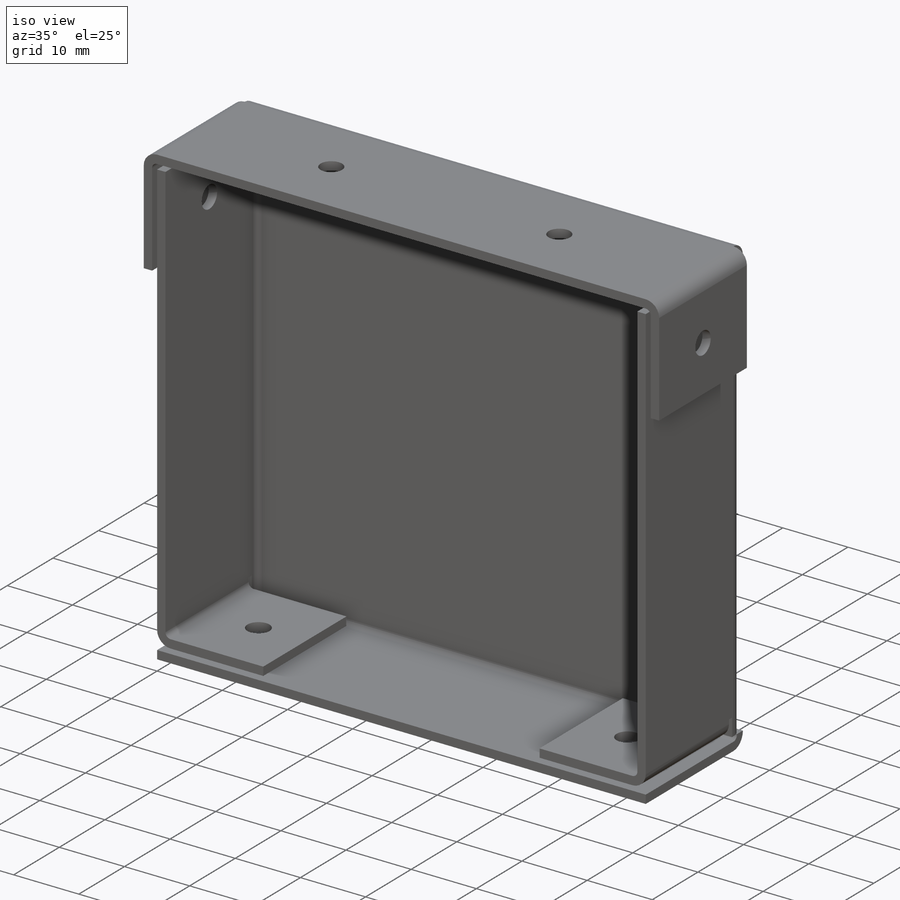
[diagram: iso view]
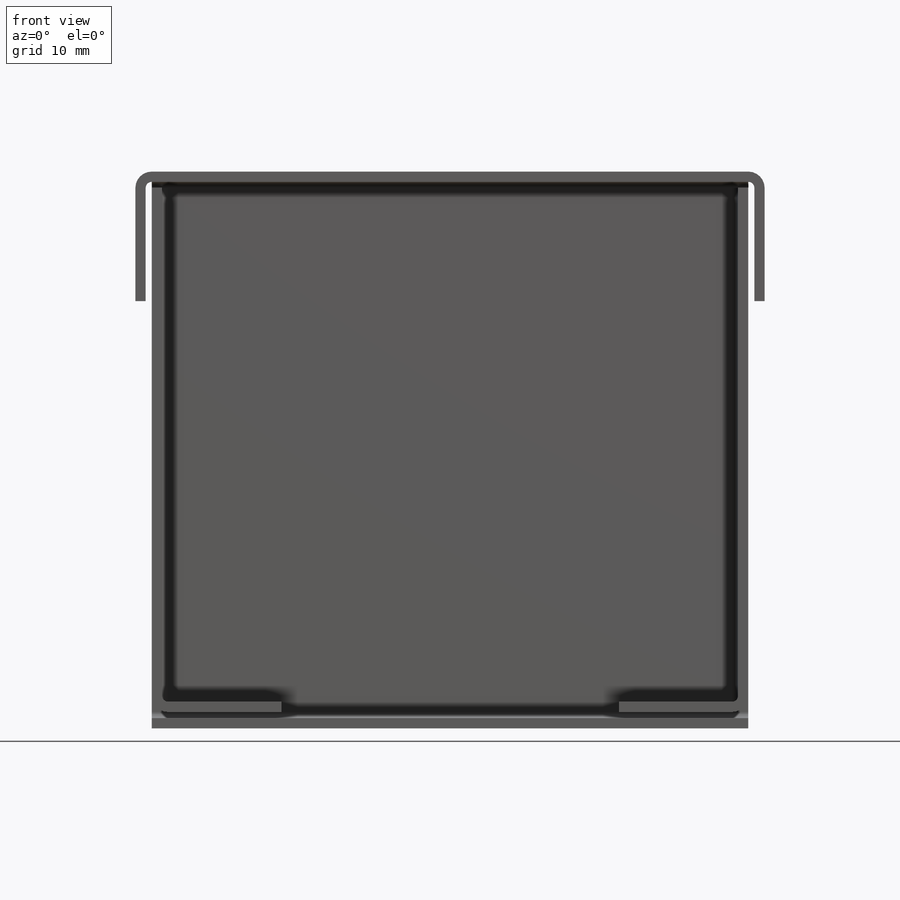
[diagram: front view]
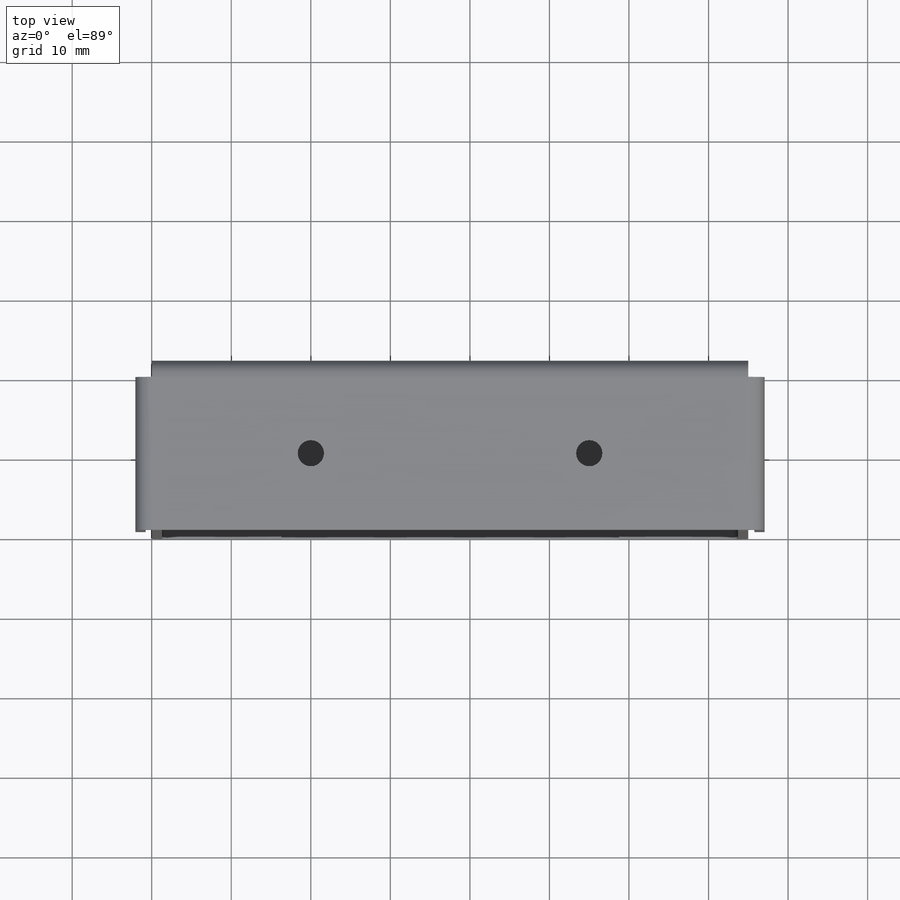
[diagram: top view]
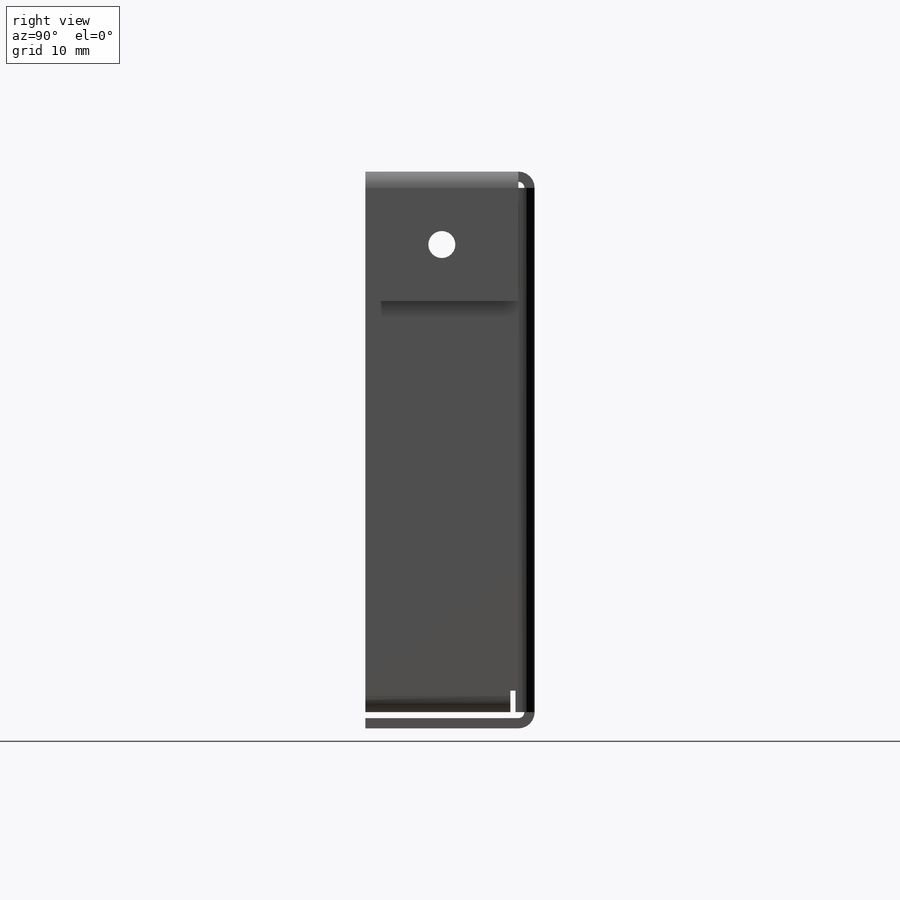
[diagram: right view]
SOLIDWORKS PART (.sldprt)
format: sldprt  version: not decoded by parser v0  size: 744,448 bytes
history: native  units: mm
features: sketch x41, sheet_metal_op x20, hole x3, material x1, plane x1 + 71 further entries (+12 scaffold rows collapsed; 1 parser-record rows omitted)
feature tree (150):
  scaffold x12  (default folders/planes/origin — collapsed)
  material  "Material <not specified>"
  sketch  "Sketch1"  dims[c1.D1=~53.691553mm c1.D2=~100.618816mm c2.D1=75.0mm c2.D2=70.0mm c3.D1=0.762mm c3.D2=0.389 c3.D3=1.1938mm c3.D6=500.0mm]
  sheet_metal_op  "Base-Flange1"
  plane  "Mid Width"
  sketch  "Sketch8"  dims[c1.D1=0.762mm c1.D4=90.0deg c1.D5=1.0 c1.D8=0.645mm c1.D9=0.645mm c2.D1=0.762mm c2.D2=500.0mm c2.D3=0.0mm c2.D6=10.0mm c2.D7=20.0mm c2.Edge-Flange2=0.0]
  sketch  "Sketch11"
  sheet_metal_op  "EdgeBend2"  Edge-Flange3=0
  sketch  "Sketch14"
  sheet_metal_op  "EdgeBend3"  Edge-Flange4=0
  sketch  "Sketch17"
  sheet_metal_op  "EdgeBend4"  Edge-Flange6=0
  sketch  "Sketch23"  dims[D1=1.0mm D2=15.0mm]
  sheet_metal_op  "EdgeBend6"  Edge-Flange8=0
  sketch  "Sketch29"  dims[D1=1.0mm D2=15.0mm]
  sheet_metal_op  "EdgeBend8"  Edge-Flange9=0
  sketch  "Sketch33"
  sheet_metal_op  "EdgeBend9"  Edge-Flange10=0
  sketch  "Sketch36"
  sheet_metal_op  "EdgeBend10"
  hole  "Tap Drill for M4x0.7 Tap1"  Diameter=3.3mm Depth=1.289mm
  sketch  "Sketch38"  dims[D1=20.0mm D2=20.0mm]
  sketch  "Sketch37"  dims[hole-wizard template sketch: 47 standard entries collapsed; hole parameters kept: c15.Hole Depth=1.289mm c15.D3=~14.816244mm c15.Drill Angle=118.0deg]
  hole  "M3 Clearance Hole1"  Diameter=3.4mm Depth=3.342mm
  sketch  "Sketch40"  dims[D1=~19.278555mm]
  sketch  "Sketch39"  dims[hole-wizard template sketch: 60 standard entries collapsed; hole parameters kept: c18.Thru Hole Depth=3.342mm]
  hole  "M3 Clearance Hole2"  Diameter=3.4mm Depth=79.104mm
  sketch  "Sketch42"  dims[D1=~14.938548mm]
  sketch  "Sketch41"  dims[hole-wizard template sketch: 60 standard entries collapsed; hole parameters kept: c18.Thru Hole Depth=79.104mm]
  sketch  "Bend-Lines1"
  sketch  "Bounding-Box1"
  sheet_metal_op  "Sheet-Metal(1)"
  "Flat-Pattern(1)"
  sketch  "Bend-Lines2"
  sketch  "Bounding-Box2"
  parser-record x1  (decoder bookkeeping rows leaked as tree rows — omitted from the tree; the rows remain in map.json)
  sheet_metal_op  "Sheet-Metal(2)"
  "Flat-Pattern(1)"
  sketch  "Bend-Lines2"
  sketch  "Bounding-Box2"
  sheet_metal_op  "Sheet-Metal(3)"
  "Flat-Pattern(1)"
  sketch  "Bend-Lines2"
  sketch  "Bounding-Box2"
  "Flatten-<EdgeBend1>1"
  "Flatten-<EdgeBend2>1"
  sheet_metal_op  "Sheet-Metal(4)"
  "Flat-Pattern(1)"
  sketch  "Bend-Lines2"
  sketch  "Bounding-Box2"
  "Flatten-<EdgeBend1>1"
  "Flatten-<EdgeBend2>1"
  "Flatten-<EdgeBend3>1"
  sheet_metal_op  "Sheet-Metal(5)"
  "Flat-Pattern(1)"
  sketch  "Bend-Lines2"
  sketch  "Bounding-Box2"
  "Flatten-<EdgeBend1>1"
  "Flatten-<EdgeBend2>1"
  "Flatten-<EdgeBend3>1"
  "Flatten-<EdgeBend4>1"
  sheet_metal_op  "Sheet-Metal(7)"
  "Flat-Pattern(1)"
  sketch  "Bend-Lines2"
  sketch  "Bounding-Box2"
  "Flatten-<EdgeBend1>1"
  "Flatten-<EdgeBend2>1"
  "Flatten-<EdgeBend3>1"
  "Flatten-<EdgeBend4>1"
  "Flatten-<EdgeBend6>1"
  sheet_metal_op  "Sheet-Metal(9)"
  "Flat-Pattern(1)"
  sketch  "Bend-Lines2"
  sketch  "Bounding-Box2"
  "Flatten-<EdgeBend1>1"
  "Flatten-<EdgeBend2>1"
  "Flatten-<EdgeBend3>1"
  "Flatten-<EdgeBend4>1"
  "Flatten-<EdgeBend6>1"
  "Flatten-<EdgeBend8>1"
  sheet_metal_op  "Sheet-Metal(12)"
  "Flat-Pattern(1)"
  sketch  "Bend-Lines2"
  sketch  "Bounding-Box2"
  "Flatten-<EdgeBend1>1"
  "Flatten-<EdgeBend2>1"
  "Flatten-<EdgeBend3>1"
  "Flatten-<EdgeBend4>1"
  "Flatten-<EdgeBend6>1"
  "Flatten-<EdgeBend8>1"
  "Flatten-<EdgeBend9>1"
  sheet_metal_op  "Sheet-Metal(13)"
  "Flat-Pattern(1)"
  sketch  "Bend-Lines2"
  sketch  "Bounding-Box2"
  "Flatten-<EdgeBend1>1"
  "Flatten-<EdgeBend2>1"
  "Flatten-<EdgeBend3>1"
  "Flatten-<EdgeBend4>1"
  "Flatten-<EdgeBend6>1"
  "Flatten-<EdgeBend8>1"
  "Flatten-<EdgeBend9>1"
  "Flatten-<EdgeBend10>1"
  sheet_metal_op  "Sheet-Metal(14)"
  "Flat-Pattern(1)"
  sketch  "Bend-Lines2"
  sketch  "Bounding-Box2"
  "Flatten-<EdgeBend1>1"
  "Flatten-<EdgeBend2>1"
  "Flatten-<EdgeBend3>1"
  "Flatten-<EdgeBend4>1"
  "Flatten-<EdgeBend6>1"
  "Flatten-<EdgeBend8>1"
  "Flatten-<EdgeBend9>1"
  "Flatten-<EdgeBend10>1"
  sheet_metal_op  "Sheet-Metal(15)"
  "Flat-Pattern(1)"
  sketch  "Bend-Lines2"
  sketch  "Bounding-Box2"
  "Flatten-<EdgeBend1>1"
  "Flatten-<EdgeBend2>1"
  "Flatten-<EdgeBend3>1"
  "Flatten-<EdgeBend4>1"
  "Flatten-<EdgeBend6>1"
  "Flatten-<EdgeBend8>1"
  "Flatten-<EdgeBend9>1"
  "Flatten-<EdgeBend10>1"
  sheet_metal_op  "Sheet-Metal(16)"
  "Flat-Pattern(1)"
  sketch  "Bend-Lines2"
  sketch  "Bounding-Box2"
  "Flatten-<EdgeBend1>1"
  "Flatten-<EdgeBend2>1"
  "Flatten-<EdgeBend3>1"
  "Flatten-<EdgeBend4>1"
  "Flatten-<EdgeBend6>1"
  "Flatten-<EdgeBend8>1"
  "Flatten-<EdgeBend9>1"
  "Flatten-<EdgeBend10>1"
decode coverage: 19 of 64 modeling features carry decoded parameters; 71 rows unclassified (native names shown)
note: ~ marks probable driven/reference dimensions
note: suppression state not decoded; provenance and decode notes live in map.json
